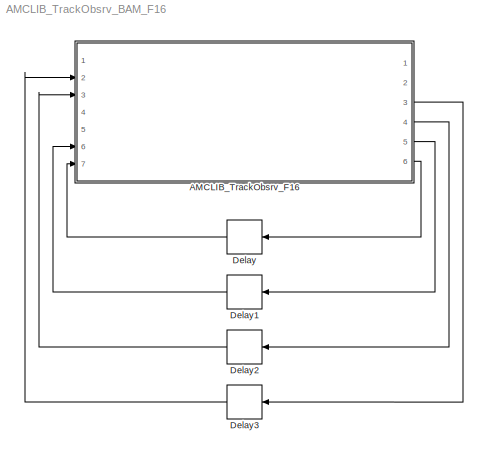
MODEL AMCLIB_TrackObsrv_BAM_F16
KIND model
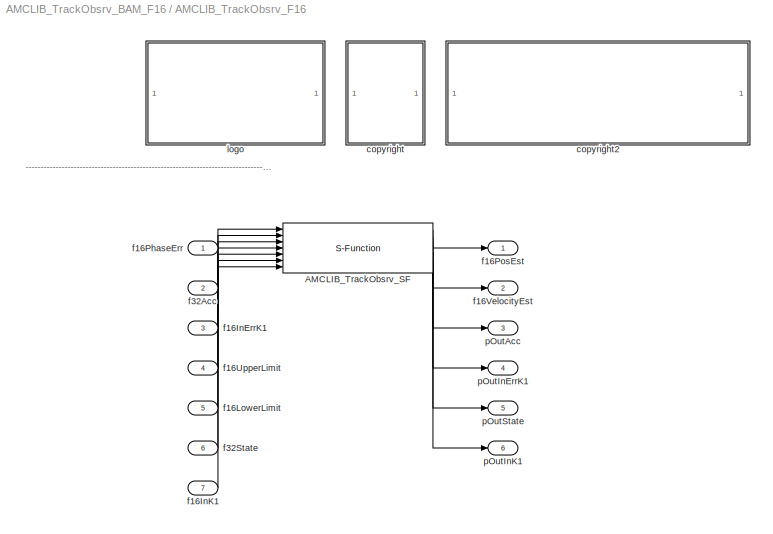
BLOCK [SubSystem] AMCLIB_TrackObsrv_F16
  Ports = [7, 6]
  RequestExecContextInheritance = off
  SID = 1
BLOCK [S-Function] AMCLIB_TrackObsrv_F16/AMCLIB_TrackObsrv_SF
  EnableBusSupport = off
  FunctionName = AMCLIB_TrackObsrv_SF_F16
  Parameters = f16CC1sc,f16CC2sc,u16NShift,f16C1,u16IntegNShift
  Ports = [7, 6]
  SID = 4
BLOCK [SubSystem] AMCLIB_TrackObsrv_F16/<copyright redacted>
  Ports = []
  RequestExecContextInheritance = off
  SID = 22
BLOCK [SubSystem] AMCLIB_TrackObsrv_F16/copyright2
  Ports = []
  RequestExecContextInheritance = off
  SID = 25
BLOCK [Inport] AMCLIB_TrackObsrv_F16/f16InErrK1
  IconDisplay = Port number
  Port = 3
  SID = 7
BLOCK [Inport] AMCLIB_TrackObsrv_F16/f16InK1
  IconDisplay = Port number
  Port = 7
  SID = 11
BLOCK [Inport] AMCLIB_TrackObsrv_F16/f16LowerLimit
  IconDisplay = Port number
  Port = 5
  SID = 9
BLOCK [Inport] AMCLIB_TrackObsrv_F16/f16PhaseErr
  IconDisplay = Port number
  SID = 5
BLOCK [Outport] AMCLIB_TrackObsrv_F16/f16PosEst
  IconDisplay = Port number
  SID = 12
BLOCK [Inport] AMCLIB_TrackObsrv_F16/f16UpperLimit
  IconDisplay = Port number
  Port = 4
  SID = 8
BLOCK [Outport] AMCLIB_TrackObsrv_F16/f16VelocityEst
  IconDisplay = Port number
  Port = 2
  SID = 13
BLOCK [Inport] AMCLIB_TrackObsrv_F16/f32Acc
  IconDisplay = Port number
  Port = 2
  SID = 6
BLOCK [Inport] AMCLIB_TrackObsrv_F16/f32State
  IconDisplay = Port number
  Port = 6
  SID = 10
BLOCK [SubSystem] AMCLIB_TrackObsrv_F16/logo
  Ports = []
  RequestExecContextInheritance = off
  SID = 18
BLOCK [Outport] AMCLIB_TrackObsrv_F16/pOutAcc
  IconDisplay = Port number
  Port = 3
  SID = 14
BLOCK [Outport] AMCLIB_TrackObsrv_F16/pOutInErrK1
  IconDisplay = Port number
  Port = 4
  SID = 15
BLOCK [Outport] AMCLIB_TrackObsrv_F16/pOutInK1
  IconDisplay = Port number
  Port = 6
  SID = 17
BLOCK [Outport] AMCLIB_TrackObsrv_F16/pOutState
  IconDisplay = Port number
  Port = 5
  SID = 16
BLOCK [Delay] Delay
  DelayLength = 1
  InitialCondition = 0
  InputPortMap = u0
  Ports = [1, 1]
  SID = 28
BLOCK [Delay] Delay1
  DelayLength = 1
  InitialCondition = 0
  InputPortMap = u0
  Ports = [1, 1]
  SID = 29
BLOCK [Delay] Delay2
  DelayLength = 1
  InitialCondition = 0
  InputPortMap = u0
  Ports = [1, 1]
  SID = 30
BLOCK [Delay] Delay3
  DelayLength = 1
  InitialCondition = 0
  InputPortMap = u0
  Ports = [1, 1]
  SID = 31
ANNOTATION AMCLIB_TrackObsrv_F16: ---------------------------------------------------------------------------------------------------------------------------------------------------------------------------------------------------
LINE AMCLIB_TrackObsrv_F16/AMCLIB_TrackObsrv_SF:1 -> AMCLIB_TrackObsrv_F16/f16PosEst:1
LINE AMCLIB_TrackObsrv_F16/AMCLIB_TrackObsrv_SF:2 -> AMCLIB_TrackObsrv_F16/f16VelocityEst:1
LINE AMCLIB_TrackObsrv_F16/AMCLIB_TrackObsrv_SF:3 -> AMCLIB_TrackObsrv_F16/pOutAcc:1
LINE AMCLIB_TrackObsrv_F16/AMCLIB_TrackObsrv_SF:4 -> AMCLIB_TrackObsrv_F16/pOutInErrK1:1
LINE AMCLIB_TrackObsrv_F16/AMCLIB_TrackObsrv_SF:5 -> AMCLIB_TrackObsrv_F16/pOutState:1
LINE AMCLIB_TrackObsrv_F16/AMCLIB_TrackObsrv_SF:6 -> AMCLIB_TrackObsrv_F16/pOutInK1:1
LINE AMCLIB_TrackObsrv_F16/f16InErrK1:1 -> AMCLIB_TrackObsrv_F16/AMCLIB_TrackObsrv_SF:3
LINE AMCLIB_TrackObsrv_F16/f16InK1:1 -> AMCLIB_TrackObsrv_F16/AMCLIB_TrackObsrv_SF:7
LINE AMCLIB_TrackObsrv_F16/f16LowerLimit:1 -> AMCLIB_TrackObsrv_F16/AMCLIB_TrackObsrv_SF:5
LINE AMCLIB_TrackObsrv_F16/f16PhaseErr:1 -> AMCLIB_TrackObsrv_F16/AMCLIB_TrackObsrv_SF:1
LINE AMCLIB_TrackObsrv_F16/f16UpperLimit:1 -> AMCLIB_TrackObsrv_F16/AMCLIB_TrackObsrv_SF:4
LINE AMCLIB_TrackObsrv_F16/f32Acc:1 -> AMCLIB_TrackObsrv_F16/AMCLIB_TrackObsrv_SF:2
LINE AMCLIB_TrackObsrv_F16/f32State:1 -> AMCLIB_TrackObsrv_F16/AMCLIB_TrackObsrv_SF:6
LINE AMCLIB_TrackObsrv_F16:3 -> Delay3:1
LINE AMCLIB_TrackObsrv_F16:4 -> Delay2:1
LINE AMCLIB_TrackObsrv_F16:5 -> Delay1:1
LINE AMCLIB_TrackObsrv_F16:6 -> Delay:1
LINE Delay1:1 -> AMCLIB_TrackObsrv_F16:6
LINE Delay2:1 -> AMCLIB_TrackObsrv_F16:3
LINE Delay3:1 -> AMCLIB_TrackObsrv_F16:2
LINE Delay:1 -> AMCLIB_TrackObsrv_F16:7
